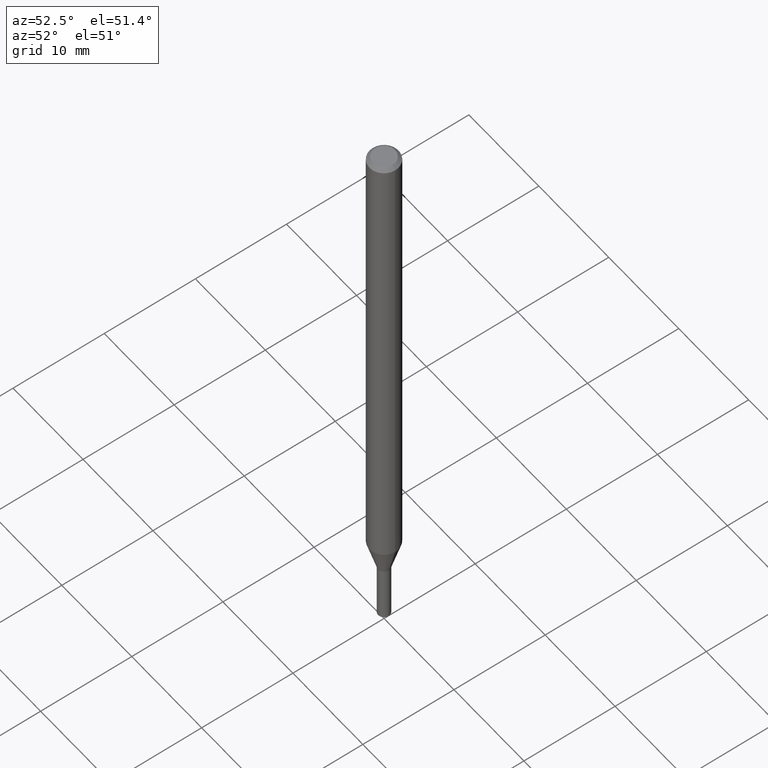
[diagram: clean part render]
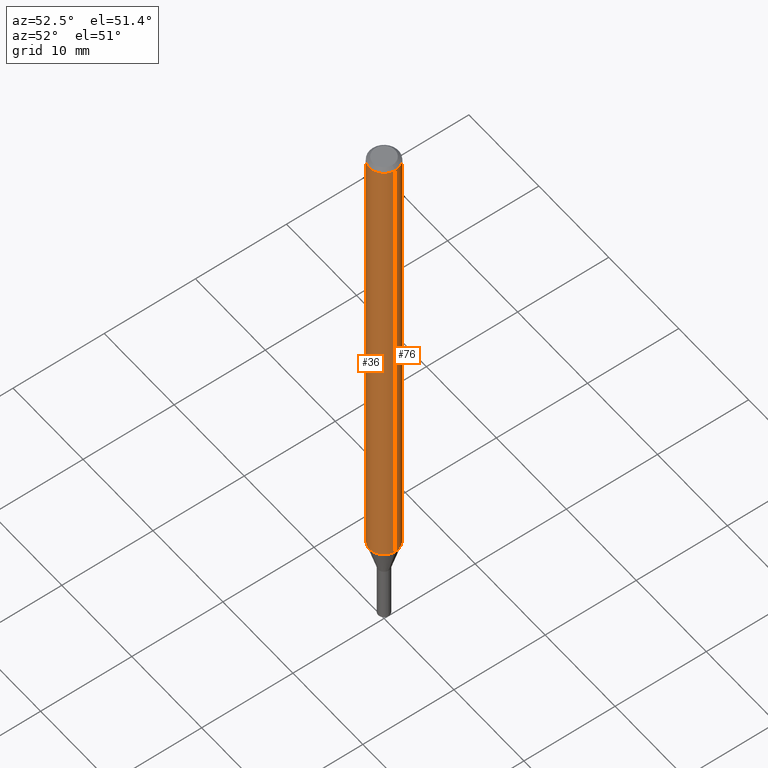
[diagram: same view with one multi-face feature highlighted, each face labeled with its STEP entity id]
A machine part, auxiliary view. The highlighted faces form ONE feature: a constant-radius fillet chain: 2 tangent blend faces with common blend radius 1.5875 mm. The faces share edges in the B-rep.
Their STEP definitions:
[1] entity #76 (Cylinder):
#7 = DIRECTION ( 'NONE',  ( -2.445468806185136597E-29, 3.491481338843145583E-15, 1.000000000000000000 ) ) ;
#12 = CARTESIAN_POINT ( 'NONE',  ( 0.000000000000000000, 0.000000000000000000, 0.000000000000000000 ) ) ;
#16 = ORIENTED_EDGE ( 'NONE', *, *, #452, .F. ) ;
#23 = DIRECTION ( 'NONE',  ( 1.000000000000000000, -6.982962677686262766E-15, 0.000000000000000000 ) ) ;
#30 = DIRECTION ( 'NONE',  ( -2.445468806185136877E-29, 3.491481338843145188E-15, 1.000000000000000000 ) ) ;
#32 = CIRCLE ( 'NONE', #254, 0.06250000000000000000 ) ;
#35 = DIRECTION ( 'NONE',  ( 1.000000000000000000, -6.982962677686266711E-15, 0.000000000000000000 ) ) ;
#38 = CIRCLE ( 'NONE', #381, 0.06250000000000000000 ) ;
#71 = DIRECTION ( 'NONE',  ( -2.445468806185136597E-29, 3.491481338843145583E-15, 1.000000000000000000 ) ) ;
#75 = VECTOR ( 'NONE', #202, 39.37007874015748143 ) ;
#76 = ADVANCED_FACE ( 'NONE', ( #348 ), #346, .T. ) ;
#81 = ORIENTED_EDGE ( 'NONE', *, *, #225, .T. ) ;
#85 = VERTEX_POINT ( 'NONE', #448 ) ;
#170 = CARTESIAN_POINT ( 'NONE',  ( -0.06250000000000000000, -6.923104336912972739E-15, -2.110048094716168166 ) ) ;
#171 = VERTEX_POINT ( 'NONE', #391 ) ;
#191 = ORIENTED_EDGE ( 'NONE', *, *, #319, .T. ) ;
#202 = DIRECTION ( 'NONE',  ( -2.445468806185136877E-29, 3.491481338843145188E-15, 1.000000000000000000 ) ) ;
#225 = EDGE_CURVE ( 'NONE', #226, #261, #38, .T. ) ;
#226 = VERTEX_POINT ( 'NONE', #419 ) ;
#230 = EDGE_CURVE ( 'NONE', #226, #171, #394, .T. ) ;
#243 = CARTESIAN_POINT ( 'NONE',  ( 5.160056795178769095E-29, -7.367193546763035355E-15, -2.110048094716168166 ) ) ;
#254 = AXIS2_PLACEMENT_3D ( 'NONE', #361, #71, #35 ) ;
#261 = VERTEX_POINT ( 'NONE', #170 ) ;
#278 = DIRECTION ( 'NONE',  ( -2.445468806185136597E-29, 3.491481338843145583E-15, 1.000000000000000000 ) ) ;
#280 = ORIENTED_EDGE ( 'NONE', *, *, #230, .F. ) ;
#286 = LINE ( 'NONE', #388, #75 ) ;
#304 = DIRECTION ( 'NONE',  ( 1.000000000000000000, -6.982962677686266711E-15, 4.876176775795935793E-29 ) ) ;
#310 = EDGE_LOOP ( 'NONE', ( #81, #191, #16, #280 ) ) ;
#319 = EDGE_CURVE ( 'NONE', #261, #85, #286, .T. ) ;
#346 = CYLINDRICAL_SURFACE ( 'NONE', #450, 0.06250000000000000000 ) ;
#348 = FACE_OUTER_BOUND ( 'NONE', #310, .T. ) ;
#361 = CARTESIAN_POINT ( 'NONE',  ( 3.668203209277705088E-31, -5.237222008264718399E-17, -0.01499999999999999944 ) ) ;
#381 = AXIS2_PLACEMENT_3D ( 'NONE', #243, #278, #23 ) ;
#388 = CARTESIAN_POINT ( 'NONE',  ( -0.06250000000000000000, 4.440892098500626162E-16, -3.074334431409316114E-30 ) ) ;
#391 = CARTESIAN_POINT ( 'NONE',  ( 0.06250000000000000000, -4.888073874380388472E-16, -0.01499999999999999944 ) ) ;
#394 = LINE ( 'NONE', #421, #434 ) ;
#419 = CARTESIAN_POINT ( 'NONE',  ( 0.06250000000000000000, -7.803628714118427025E-15, -2.110048094716168166 ) ) ;
#421 = CARTESIAN_POINT ( 'NONE',  ( 0.06250000000000000000, -4.364351673553916694E-16, 3.047610484872459871E-30 ) ) ;
#434 = VECTOR ( 'NONE', #30, 39.37007874015748143 ) ;
#448 = CARTESIAN_POINT ( 'NONE',  ( -0.06250000000000000000, -3.265693673572778798E-15, -0.01499999999999999944 ) ) ;
#450 = AXIS2_PLACEMENT_3D ( 'NONE', #12, #7, #304 ) ;
#452 = EDGE_CURVE ( 'NONE', #171, #85, #32, .T. ) ;
[2] entity #36 (Cylinder):
#30 = DIRECTION ( 'NONE',  ( -2.445468806185136877E-29, 3.491481338843145188E-15, 1.000000000000000000 ) ) ;
#36 = ADVANCED_FACE ( 'NONE', ( #160 ), #56, .T. ) ;
#39 = EDGE_LOOP ( 'NONE', ( #119, #354, #392, #186 ) ) ;
#56 = CYLINDRICAL_SURFACE ( 'NONE', #146, 0.06250000000000000000 ) ;
#75 = VECTOR ( 'NONE', #202, 39.37007874015748143 ) ;
#85 = VERTEX_POINT ( 'NONE', #448 ) ;
#107 = AXIS2_PLACEMENT_3D ( 'NONE', #247, #325, #131 ) ;
#119 = ORIENTED_EDGE ( 'NONE', *, *, #319, .F. ) ;
#131 = DIRECTION ( 'NONE',  ( 1.000000000000000000, -6.982962677686262766E-15, 0.000000000000000000 ) ) ;
#146 = AXIS2_PLACEMENT_3D ( 'NONE', #411, #309, #154 ) ;
#154 = DIRECTION ( 'NONE',  ( 1.000000000000000000, -6.982962677686266711E-15, 4.876176775795935793E-29 ) ) ;
#160 = FACE_OUTER_BOUND ( 'NONE', #39, .T. ) ;
#170 = CARTESIAN_POINT ( 'NONE',  ( -0.06250000000000000000, -6.923104336912972739E-15, -2.110048094716168166 ) ) ;
#171 = VERTEX_POINT ( 'NONE', #391 ) ;
#186 = ORIENTED_EDGE ( 'NONE', *, *, #203, .F. ) ;
#202 = DIRECTION ( 'NONE',  ( -2.445468806185136877E-29, 3.491481338843145188E-15, 1.000000000000000000 ) ) ;
#203 = EDGE_CURVE ( 'NONE', #85, #171, #314, .T. ) ;
#226 = VERTEX_POINT ( 'NONE', #419 ) ;
#230 = EDGE_CURVE ( 'NONE', #226, #171, #394, .T. ) ;
#241 = DIRECTION ( 'NONE',  ( 1.000000000000000000, -6.982962677686266711E-15, 0.000000000000000000 ) ) ;
#247 = CARTESIAN_POINT ( 'NONE',  ( 5.160056795178769095E-29, -7.367193546763035355E-15, -2.110048094716168166 ) ) ;
#261 = VERTEX_POINT ( 'NONE', #170 ) ;
#279 = EDGE_CURVE ( 'NONE', #261, #226, #336, .T. ) ;
#286 = LINE ( 'NONE', #388, #75 ) ;
#309 = DIRECTION ( 'NONE',  ( -2.445468806185136597E-29, 3.491481338843145583E-15, 1.000000000000000000 ) ) ;
#314 = CIRCLE ( 'NONE', #321, 0.06250000000000000000 ) ;
#319 = EDGE_CURVE ( 'NONE', #261, #85, #286, .T. ) ;
#320 = CARTESIAN_POINT ( 'NONE',  ( 3.668203209277705088E-31, -5.237222008264718399E-17, -0.01499999999999999944 ) ) ;
#321 = AXIS2_PLACEMENT_3D ( 'NONE', #320, #458, #241 ) ;
#325 = DIRECTION ( 'NONE',  ( -2.445468806185136597E-29, 3.491481338843145583E-15, 1.000000000000000000 ) ) ;
#336 = CIRCLE ( 'NONE', #107, 0.06250000000000000000 ) ;
#354 = ORIENTED_EDGE ( 'NONE', *, *, #279, .T. ) ;
#388 = CARTESIAN_POINT ( 'NONE',  ( -0.06250000000000000000, 4.440892098500626162E-16, -3.074334431409316114E-30 ) ) ;
#391 = CARTESIAN_POINT ( 'NONE',  ( 0.06250000000000000000, -4.888073874380388472E-16, -0.01499999999999999944 ) ) ;
#392 = ORIENTED_EDGE ( 'NONE', *, *, #230, .T. ) ;
#394 = LINE ( 'NONE', #421, #434 ) ;
#411 = CARTESIAN_POINT ( 'NONE',  ( 0.000000000000000000, 0.000000000000000000, 0.000000000000000000 ) ) ;
#419 = CARTESIAN_POINT ( 'NONE',  ( 0.06250000000000000000, -7.803628714118427025E-15, -2.110048094716168166 ) ) ;
#421 = CARTESIAN_POINT ( 'NONE',  ( 0.06250000000000000000, -4.364351673553916694E-16, 3.047610484872459871E-30 ) ) ;
#434 = VECTOR ( 'NONE', #30, 39.37007874015748143 ) ;
#448 = CARTESIAN_POINT ( 'NONE',  ( -0.06250000000000000000, -3.265693673572778798E-15, -0.01499999999999999944 ) ) ;
#458 = DIRECTION ( 'NONE',  ( -2.445468806185136597E-29, 3.491481338843145583E-15, 1.000000000000000000 ) ) ;